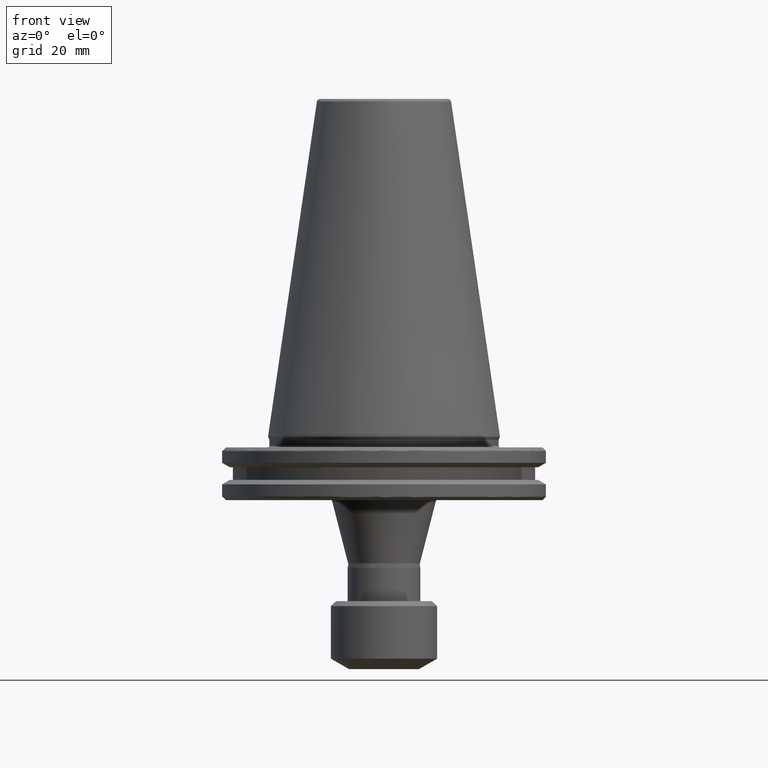
[diagram: clean part render]
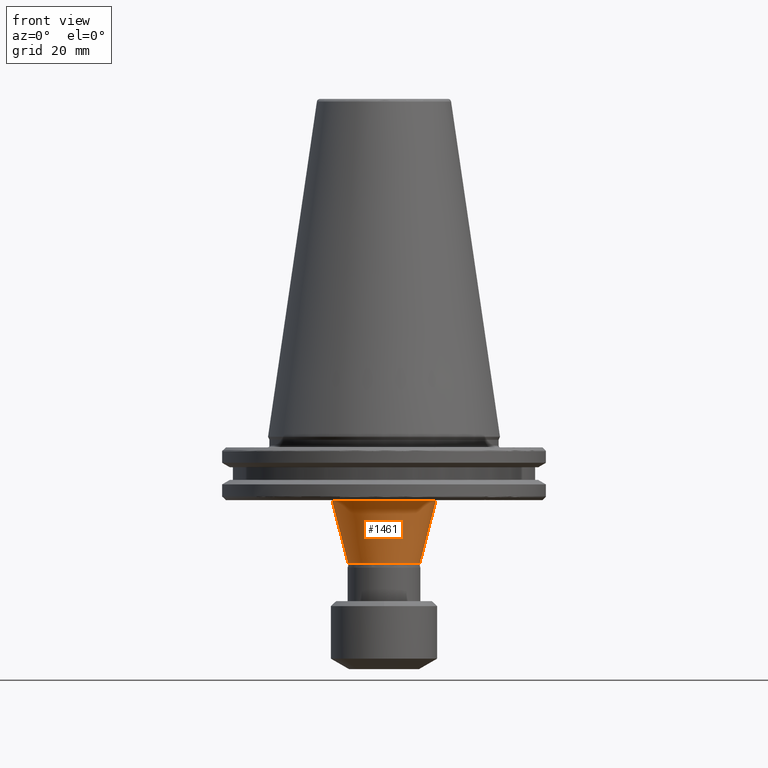
[diagram: same view with one face highlighted and labeled with its STEP entity id]
A machine part, front view. The second image highlights one B-rep face of the part: STEP entity #1461.
In plain terms, the highlighted conical surface has half-angle 14.396 deg.
Its self-contained STEP definition (entity closure, byte-faithful):
#183 = DIRECTION ( 'NONE',  ( 1.000000000000000000, 0.0000000000000000000, 0.0000000000000000000 ) ) ;
#248 = EDGE_CURVE ( 'NONE', #1683, #1448, #485, .T. ) ;
#264 = CARTESIAN_POINT ( 'NONE',  ( 10.82779479628227100, 0.0000000000000000000, -38.06266752333196700 ) ) ;
#292 = VECTOR ( 'NONE', #1891, 1000.000000000000100 ) ;
#403 = CARTESIAN_POINT ( 'NONE',  ( 15.69500000000000000, 0.0000000000000000000, -19.10000000000000900 ) ) ;
#485 = LINE ( 'NONE', #2438, #580 ) ;
#516 = ORIENTED_EDGE ( 'NONE', *, *, #2006, .T. ) ;
#580 = VECTOR ( 'NONE', #1014, 1000.000000000000100 ) ;
#650 = CIRCLE ( 'NONE', #1696, 10.82779479628227100 ) ;
#734 = DIRECTION ( 'NONE',  ( 0.0000000000000000000, 0.0000000000000000000, 1.000000000000000000 ) ) ;
#766 = CIRCLE ( 'NONE', #1477, 15.69500000000000000 ) ;
#810 = VERTEX_POINT ( 'NONE', #264 ) ;
#835 = CARTESIAN_POINT ( 'NONE',  ( -10.82779479628227100, 1.624052787585458200E-015, -38.06266752333196700 ) ) ;
#936 = DIRECTION ( 'NONE',  ( 0.0000000000000000000, -0.0000000000000000000, 1.000000000000000000 ) ) ;
#952 = VERTEX_POINT ( 'NONE', #1061 ) ;
#1014 = DIRECTION ( 'NONE',  ( -0.2486141582296550200, 3.044645330986606300E-017, 0.9686026018588633800 ) ) ;
#1061 = CARTESIAN_POINT ( 'NONE',  ( 15.69500000000000000, 0.0000000000000000000, -19.10000000000000500 ) ) ;
#1226 = ORIENTED_EDGE ( 'NONE', *, *, #2250, .T. ) ;
#1275 = LINE ( 'NONE', #403, #292 ) ;
#1326 = CONICAL_SURFACE ( 'NONE', #2760, 15.69500000000000000, 0.2512492278026512400 ) ;
#1347 = CARTESIAN_POINT ( 'NONE',  ( 0.0000000000000000000, 0.0000000000000000000, -19.10000000000000500 ) ) ;
#1366 = ORIENTED_EDGE ( 'NONE', *, *, #2606, .F. ) ;
#1448 = VERTEX_POINT ( 'NONE', #2142 ) ;
#1461 = ADVANCED_FACE ( 'NONE', ( #2229 ), #1326, .T. ) ;
#1477 = AXIS2_PLACEMENT_3D ( 'NONE', #1347, #2954, #1609 ) ;
#1609 = DIRECTION ( 'NONE',  ( 1.000000000000000000, 0.0000000000000000000, 0.0000000000000000000 ) ) ;
#1683 = VERTEX_POINT ( 'NONE', #835 ) ;
#1694 = CARTESIAN_POINT ( 'NONE',  ( 0.0000000000000000000, 0.0000000000000000000, -19.10000000000000900 ) ) ;
#1696 = AXIS2_PLACEMENT_3D ( 'NONE', #2184, #734, #2389 ) ;
#1789 = ORIENTED_EDGE ( 'NONE', *, *, #248, .F. ) ;
#1891 = DIRECTION ( 'NONE',  ( 0.2486141582296550200, 0.0000000000000000000, 0.9686026018588633800 ) ) ;
#2006 = EDGE_CURVE ( 'NONE', #810, #952, #1275, .T. ) ;
#2142 = CARTESIAN_POINT ( 'NONE',  ( -15.69500000000000000, 1.922083151261771300E-015, -19.10000000000000500 ) ) ;
#2184 = CARTESIAN_POINT ( 'NONE',  ( 0.0000000000000000000, 0.0000000000000000000, -38.06266752333196700 ) ) ;
#2229 = FACE_OUTER_BOUND ( 'NONE', #2265, .T. ) ;
#2250 = EDGE_CURVE ( 'NONE', #1683, #810, #650, .T. ) ;
#2265 = EDGE_LOOP ( 'NONE', ( #1789, #1226, #516, #1366 ) ) ;
#2389 = DIRECTION ( 'NONE',  ( 1.000000000000000000, 0.0000000000000000000, 0.0000000000000000000 ) ) ;
#2438 = CARTESIAN_POINT ( 'NONE',  ( -15.69500000000000000, 1.922083151261771300E-015, -19.10000000000000900 ) ) ;
#2606 = EDGE_CURVE ( 'NONE', #1448, #952, #766, .T. ) ;
#2760 = AXIS2_PLACEMENT_3D ( 'NONE', #1694, #936, #183 ) ;
#2954 = DIRECTION ( 'NONE',  ( 0.0000000000000000000, -0.0000000000000000000, 1.000000000000000000 ) ) ;